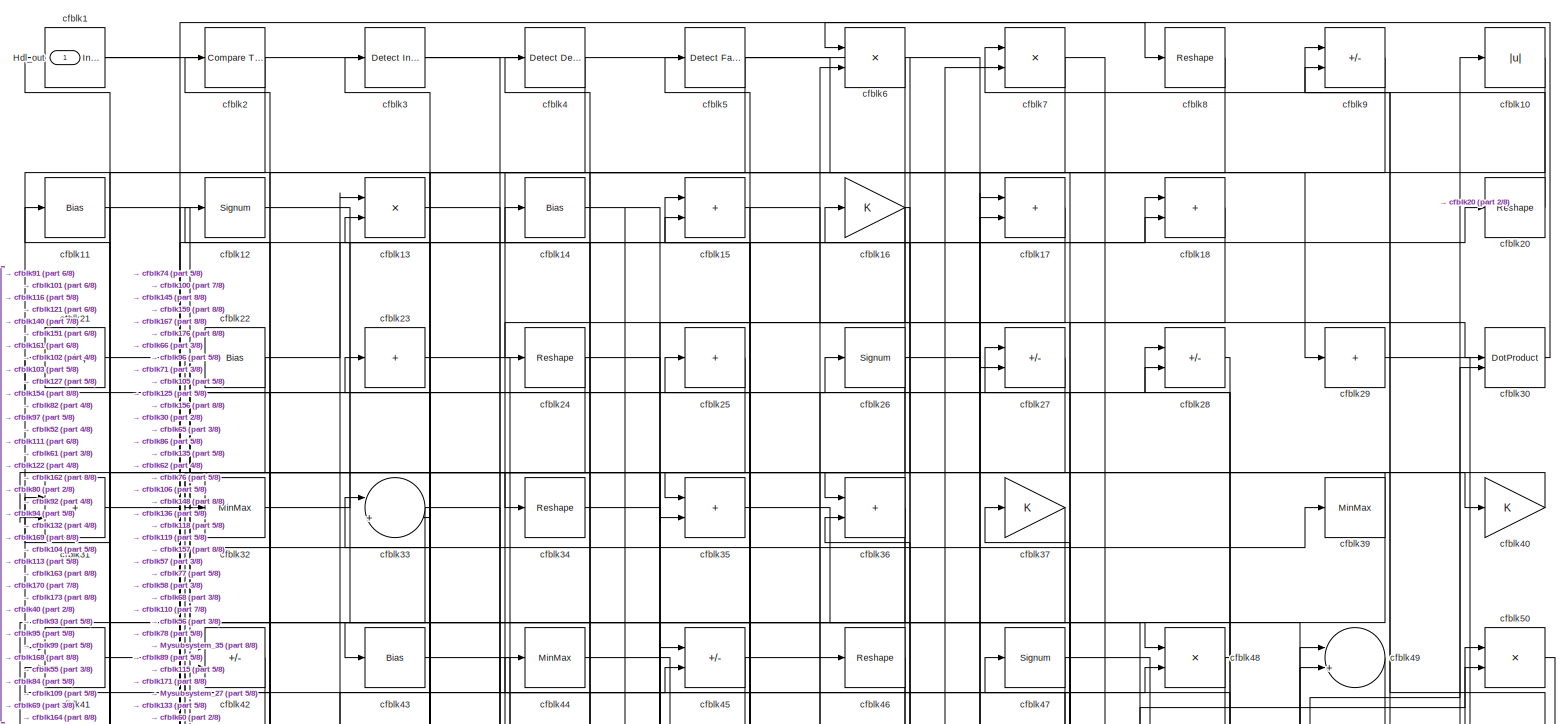
[diagram: root canvas - part 1/8, full width, top band]
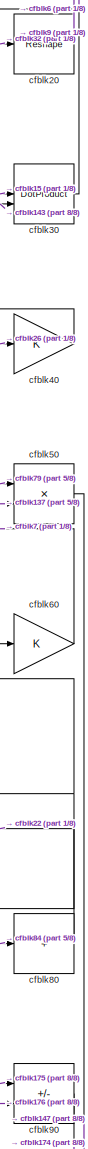
[diagram: root canvas - part 2/8, top right region]
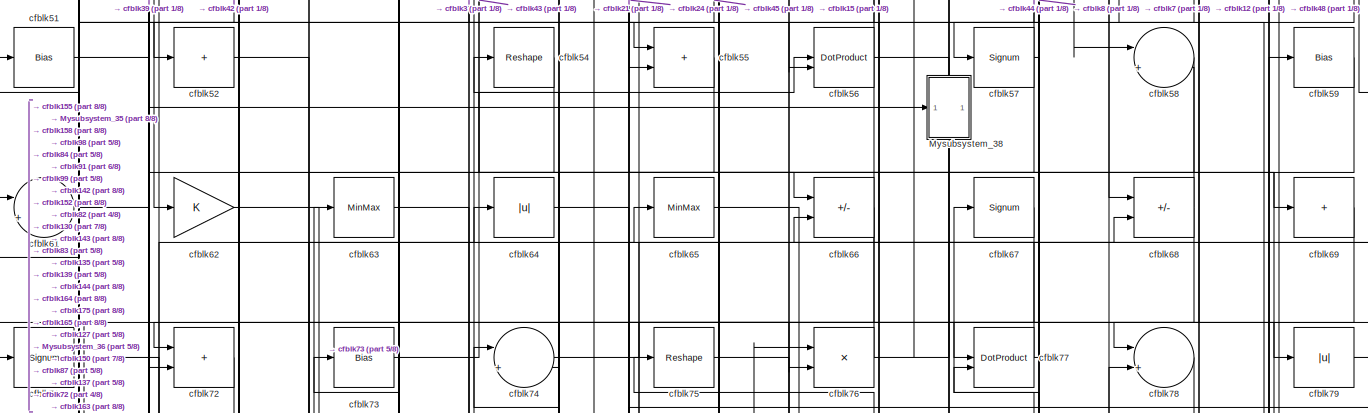
[diagram: root canvas - part 3/8, full width, middle band]
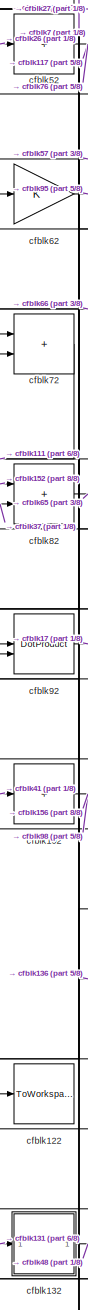
[diagram: root canvas - part 4/8, middle left region]
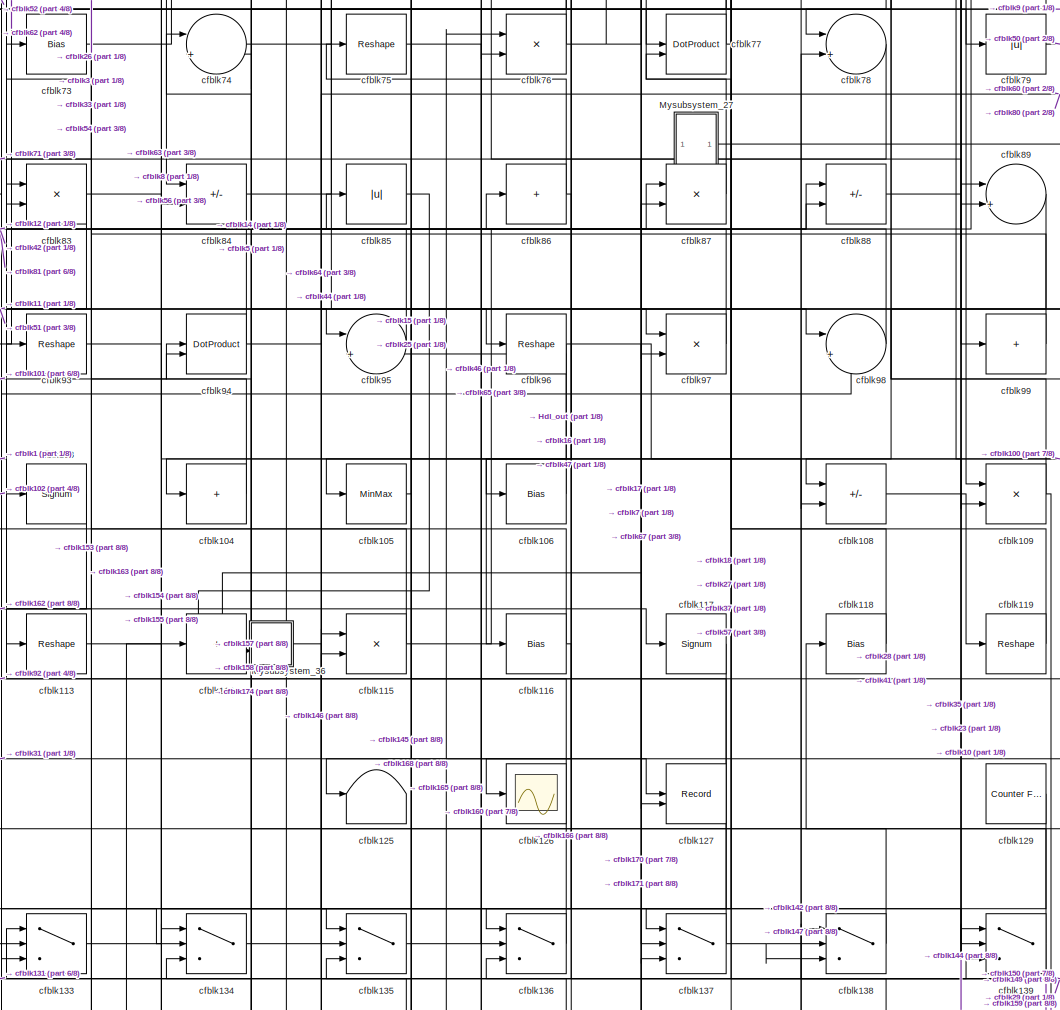
[diagram: root canvas - part 5/8, central region]
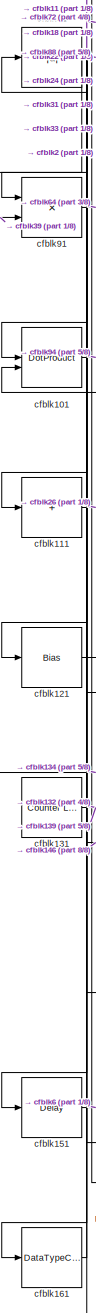
[diagram: root canvas - part 6/8, bottom left region]
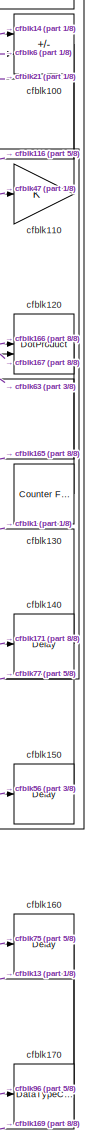
[diagram: root canvas - part 7/8, bottom right region]
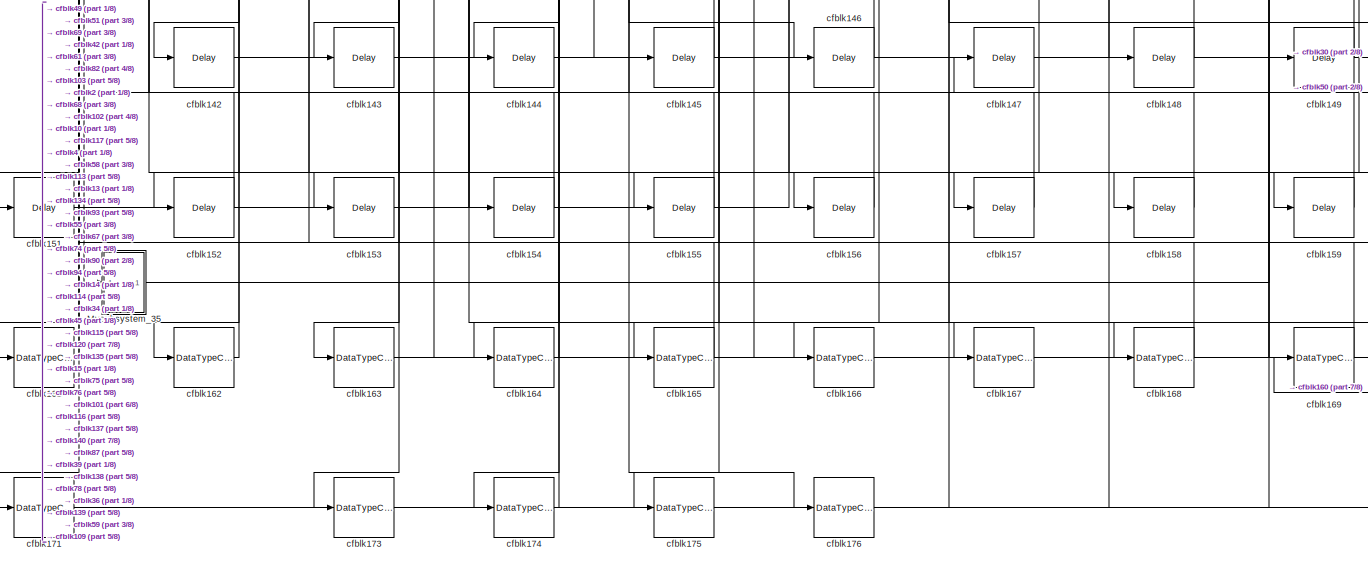
[diagram: root canvas - part 8/8, full width, bottom band]
MODEL slx_05c5dfade5c9
KIND model
CONFIG AbsTol = auto
CONFIG EnableMultiTasking = off
CONFIG FixedStep = auto
CONFIG MaxStep = auto
CONFIG MinStep = auto
CONFIG RelTol = 1e-3
CONFIG SampleTimeConstraint = Unconstrained
CONFIG SolverName = VariableStepAuto
CONFIG StartTime = 0.0
CONFIG StopTime = 10.0
BLOCK [Outport] Hdl_out
  OutDataTypeStr = uint8
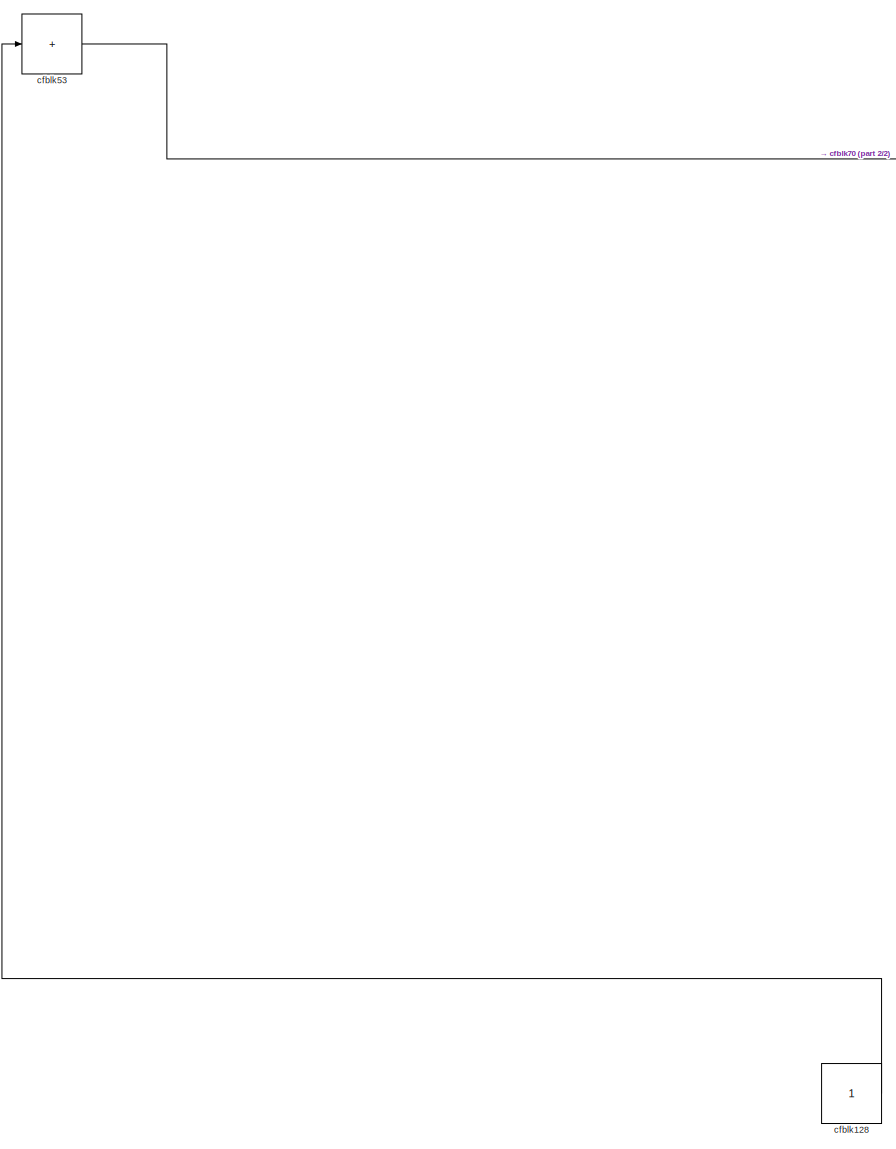
[diagram: Mysubsystem_27 - part 1/2, center side, full height]
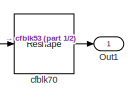
[diagram: Mysubsystem_27 - part 2/2, top right region]
BLOCK [SubSystem] Mysubsystem_27
  RTWFcnName = Mysubsystem_27
  RTWFcnNameOpts = User specified
  RTWFileNameOpts = Use function name
  RTWSystemCode = Reusable function
  TreatAsAtomicUnit = on
BLOCK [Outport] Mysubsystem_27/Out1
BLOCK [Constant] Mysubsystem_27/cfblk128
  SampleTime = -1
BLOCK [Sum] Mysubsystem_27/cfblk53
  IconShape = rectangular
  Inputs = +
BLOCK [Reshape] Mysubsystem_27/cfblk70
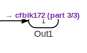
[diagram: Mysubsystem_35 - part 1/3, top right region]
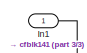
[diagram: Mysubsystem_35 - part 2/3, top right region]
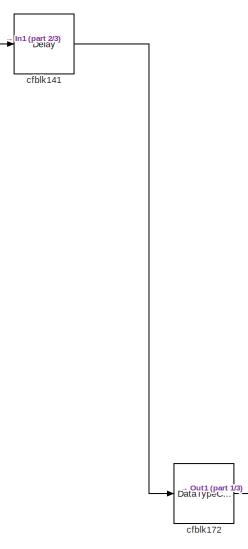
[diagram: Mysubsystem_35 - part 3/3, bottom left region]
BLOCK [SubSystem] Mysubsystem_35
  RTWFcnName = Mysubsystem_35
  RTWFcnNameOpts = User specified
  RTWFileNameOpts = Use function name
  RTWSystemCode = Reusable function
  TreatAsAtomicUnit = on
BLOCK [Inport] Mysubsystem_35/In1
BLOCK [Outport] Mysubsystem_35/Out1
BLOCK [Delay] Mysubsystem_35/cfblk141
  InputPortMap = u0
  SampleTime = 1
BLOCK [DataTypeConversion] Mysubsystem_35/cfblk172
  OutDataTypeStr = uint8
  RndMeth = Floor
  SaturateOnIntegerOverflow = off
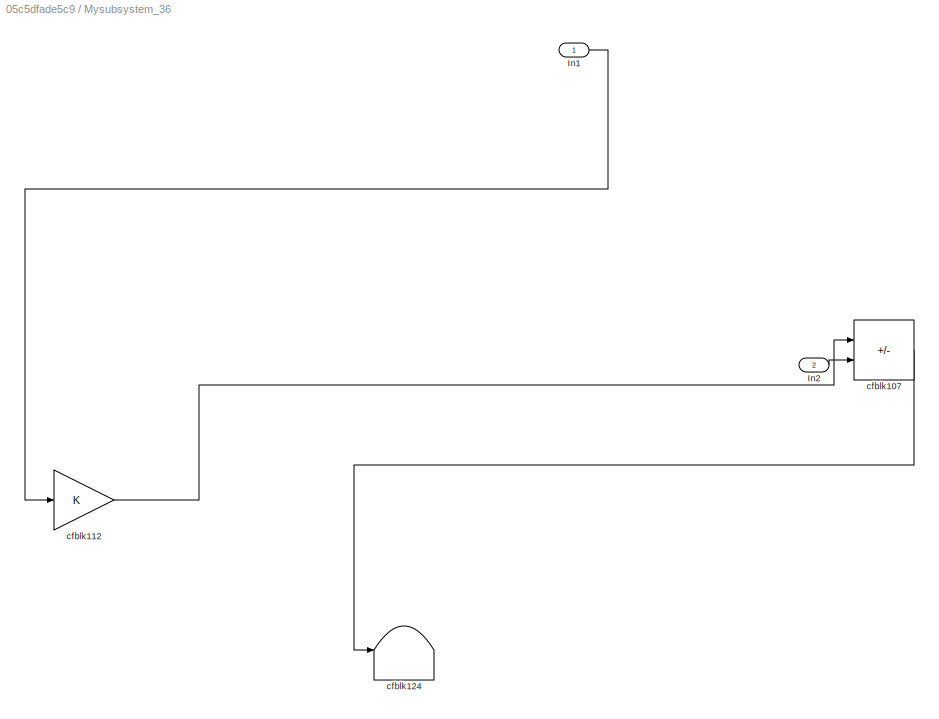
BLOCK [SubSystem] Mysubsystem_36
  RTWFcnName = Mysubsystem_36
  RTWFcnNameOpts = User specified
  RTWFileNameOpts = Use function name
  RTWSystemCode = Reusable function
  TreatAsAtomicUnit = on
BLOCK [Inport] Mysubsystem_36/In1
BLOCK [Inport] Mysubsystem_36/In2
  Port = 2
BLOCK [Sum] Mysubsystem_36/cfblk107
  IconShape = rectangular
  Inputs = +-
BLOCK [Gain] Mysubsystem_36/cfblk112
BLOCK [Terminator] Mysubsystem_36/cfblk124
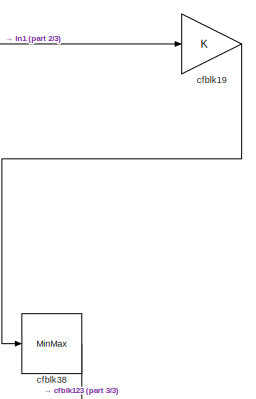
[diagram: Mysubsystem_38 - part 1/3, top right region]
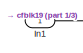
[diagram: Mysubsystem_38 - part 2/3, middle left region]
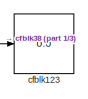
[diagram: Mysubsystem_38 - part 3/3, bottom left region]
BLOCK [SubSystem] Mysubsystem_38
  RTWFcnName = Mysubsystem_38
  RTWFcnNameOpts = User specified
  RTWFileNameOpts = Use function name
  RTWSystemCode = Reusable function
  TreatAsAtomicUnit = on
BLOCK [Inport] Mysubsystem_38/In1
BLOCK [Display] Mysubsystem_38/cfblk123
  Decimation = 1
BLOCK [Gain] Mysubsystem_38/cfblk19
BLOCK [MinMax] Mysubsystem_38/cfblk38
BLOCK [Reference] cfblk1  REF=simulink/Logic and Bit
Operations/Detect
Increase
  LibrarySourceBlock = hdlsllib/Logic and Bit\nOperations/Detect\nIncrease
  SourceBlock = simulink/Logic and Bit\nOperations/Detect\nIncrease
  SourceType = Detect Increase
BLOCK [Abs] cfblk10
  OutDataTypeStr = uint8
  SaturateOnIntegerOverflow = off
BLOCK [Sum] cfblk100
  IconShape = rectangular
  Inputs = +-
  OutDataTypeStr = uint8
BLOCK [DotProduct] cfblk101
  OutDataTypeStr = uint8
BLOCK [Sum] cfblk102
  IconShape = rectangular
  Inputs = +
  OutDataTypeStr = uint8
BLOCK [Signum] cfblk103
BLOCK [Sum] cfblk104
  IconShape = rectangular
  Inputs = +
  OutDataTypeStr = uint8
BLOCK [MinMax] cfblk105
  OutDataTypeStr = uint8
BLOCK [Bias] cfblk106
  Bias = 0.0
  SaturateOnIntegerOverflow = off
BLOCK [Sum] cfblk108
  IconShape = rectangular
  Inputs = +-
  OutDataTypeStr = uint8
BLOCK [Product] cfblk109
  Inputs = */
  OutDataTypeStr = uint8
  RndMeth = Zero
  SaturateOnIntegerOverflow = on
BLOCK [Bias] cfblk11
  Bias = 0.0
  SaturateOnIntegerOverflow = off
BLOCK [Gain] cfblk110
  OutDataTypeStr = uint8
BLOCK [Sum] cfblk111
  IconShape = rectangular
  Inputs = +
  OutDataTypeStr = uint8
BLOCK [Reshape] cfblk113
BLOCK [Sum] cfblk114
  IconShape = rectangular
  Inputs = +
  OutDataTypeStr = uint8
BLOCK [Product] cfblk115
  Inputs = */
  OutDataTypeStr = uint8
  RndMeth = Zero
  SaturateOnIntegerOverflow = on
BLOCK [Bias] cfblk116
  Bias = 0.0
  SaturateOnIntegerOverflow = off
BLOCK [Signum] cfblk117
BLOCK [Bias] cfblk118
  Bias = 0.0
  SaturateOnIntegerOverflow = off
BLOCK [Reshape] cfblk119
BLOCK [Signum] cfblk12
BLOCK [DotProduct] cfblk120
  OutDataTypeStr = uint8
BLOCK [Bias] cfblk121
  Bias = 0.0
  SaturateOnIntegerOverflow = off
BLOCK [ToWorkspace] cfblk122
  MaxDataPoints = inf
  SampleTime = -1
  SaveFormat = Timeseries
  VariableName = simout
BLOCK [Terminator] cfblk125
BLOCK [Scope] cfblk126
  Floating = off
  NumInputPorts = 1
  ScopeSpecificationString = Simulink.scopes.TimeScopeBlockCfg('CurrentConfiguration', extmgr.ConfigurationSet(extmgr.Configuration('Core','General UI',true),extmgr.Configuration('Core','Source UI',true),extmgr.Configuration('Sources','WiredSimulink',true,'DataLoggingVariableName','ScopeData2','DataLoggingSaveFormat','Array','DataLoggingLimitDataPoints',true,'DataLoggingDecimation','1'),extmgr.Configuration('Visuals','Time Do...<+868ch>
BLOCK [Record] cfblk127
  CompatibilityTag = XY
  FileSettingsInternal = {"entries":[{"content":{"excelSettings":{"content":{},"type":"Streamout.ExcelSettings"}},"type":"Streamout.FileSettingStorage","uuid":""}],"packageUris":["http:\/\/schema.mathworks.com\/mf0\/streamout_blocks\/R2020a"],"version":"1.0"}
  Layout = [1 1]
  SignalsInternal = {"entries":[{"content":{"signals":[{"content":{"blockPath":[],"dimensions":[1],"domain":"","lineColor":"#a2142f","plots":[1],"port":1,"signalID":49216,"signalName":"cfblk31"},"type":"RecordBlkView.Signal","uuid":""},{"content":{"blockPath":[],"dimensions":[1],"domain":"","lineColor":"#139fff","plots":[1],"port":2,"signalID":49219,"signalName":"cfblk65"},"type":"RecordBlkView.Signal","uuid":""}]},"...<+142ch>
  VisualizationBindings = {"xyplotplugin":{"info":[{"series":[{"bindingParametersList":[{"parameter":"X-Axis","signalID":49216,"signalName":"cfblk31"},{"parameter":"Y-Axis","signalID":49219,"signalName":"cfblk65"}],"seriesID":20958}],"subplotID":1}]}}
  st = -1
BLOCK [Reference] cfblk129  REF=hdlsllib/Sources/Counter
Free-Running
  SourceBlock = hdlsllib/Sources/Counter\nFree-Running
  SourceType = Counter Free-Running
BLOCK [Product] cfblk13
  Inputs = */
  OutDataTypeStr = uint8
  RndMeth = Zero
  SaturateOnIntegerOverflow = on
BLOCK [Reference] cfblk130  REF=hdlsllib/Sources/Counter
Free-Running
  SourceBlock = hdlsllib/Sources/Counter\nFree-Running
  SourceType = Counter Free-Running
BLOCK [Reference] cfblk131  REF=hdlsllib/Sources/Counter
Limited
  SourceBlock = hdlsllib/Sources/Counter\nLimited
  SourceType = Counter Limited
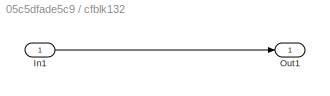
BLOCK [SubSystem] cfblk132
  LibrarySourceBlock = hdlsllib/Ports &\nSubsystems/Subsystem
BLOCK [Inport] cfblk132/In1
BLOCK [Outport] cfblk132/Out1
BLOCK [Switch] cfblk133
  InputSameDT = off
  OutDataTypeStr = uint8
  SaturateOnIntegerOverflow = off
BLOCK [Switch] cfblk134
  InputSameDT = off
  OutDataTypeStr = uint8
  SaturateOnIntegerOverflow = off
BLOCK [Switch] cfblk135
  InputSameDT = off
  OutDataTypeStr = uint8
  SaturateOnIntegerOverflow = off
BLOCK [Switch] cfblk136
  InputSameDT = off
  OutDataTypeStr = uint8
  SaturateOnIntegerOverflow = off
BLOCK [Switch] cfblk137
  InputSameDT = off
  OutDataTypeStr = uint8
  SaturateOnIntegerOverflow = off
BLOCK [Switch] cfblk138
  InputSameDT = off
  OutDataTypeStr = uint8
  SaturateOnIntegerOverflow = off
BLOCK [Switch] cfblk139
  InputSameDT = off
  OutDataTypeStr = uint8
  SaturateOnIntegerOverflow = off
BLOCK [Bias] cfblk14
  Bias = 0.0
  SaturateOnIntegerOverflow = off
BLOCK [Delay] cfblk140
  InputPortMap = u0
  SampleTime = 1
BLOCK [Delay] cfblk142
  InputPortMap = u0
  SampleTime = 1
BLOCK [Delay] cfblk143
  InputPortMap = u0
  SampleTime = 1
BLOCK [Delay] cfblk144
  InputPortMap = u0
  SampleTime = 1
BLOCK [Delay] cfblk145
  InputPortMap = u0
  SampleTime = 1
BLOCK [Delay] cfblk146
  InputPortMap = u0
  SampleTime = 1
BLOCK [Delay] cfblk147
  InputPortMap = u0
  SampleTime = 1
BLOCK [Delay] cfblk148
  InputPortMap = u0
  SampleTime = 1
BLOCK [Delay] cfblk149
  InputPortMap = u0
  SampleTime = 1
BLOCK [Sum] cfblk15
  IconShape = rectangular
  OutDataTypeStr = uint8
BLOCK [Delay] cfblk150
  InputPortMap = u0
  SampleTime = 1
BLOCK [Delay] cfblk151
  InputPortMap = u0
  SampleTime = 1
BLOCK [Delay] cfblk152
  InputPortMap = u0
  SampleTime = 1
BLOCK [Delay] cfblk153
  InputPortMap = u0
  SampleTime = 1
BLOCK [Delay] cfblk154
  InputPortMap = u0
  SampleTime = 1
BLOCK [Delay] cfblk155
  InputPortMap = u0
  SampleTime = 1
BLOCK [Delay] cfblk156
  InputPortMap = u0
  SampleTime = 1
BLOCK [Delay] cfblk157
  InputPortMap = u0
  SampleTime = 1
BLOCK [Delay] cfblk158
  InputPortMap = u0
  SampleTime = 1
BLOCK [Delay] cfblk159
  InputPortMap = u0
  SampleTime = 1
BLOCK [Gain] cfblk16
  OutDataTypeStr = uint8
BLOCK [Delay] cfblk160
  InputPortMap = u0
  SampleTime = 1
BLOCK [DataTypeConversion] cfblk161
  OutDataTypeStr = uint8
  RndMeth = Floor
  SaturateOnIntegerOverflow = off
BLOCK [DataTypeConversion] cfblk162
  OutDataTypeStr = uint8
  RndMeth = Floor
  SaturateOnIntegerOverflow = off
BLOCK [DataTypeConversion] cfblk163
  OutDataTypeStr = uint8
  RndMeth = Floor
  SaturateOnIntegerOverflow = off
BLOCK [DataTypeConversion] cfblk164
  OutDataTypeStr = uint8
  RndMeth = Floor
  SaturateOnIntegerOverflow = off
BLOCK [DataTypeConversion] cfblk165
  OutDataTypeStr = uint8
  RndMeth = Floor
  SaturateOnIntegerOverflow = off
BLOCK [DataTypeConversion] cfblk166
  OutDataTypeStr = uint8
  RndMeth = Floor
  SaturateOnIntegerOverflow = off
BLOCK [DataTypeConversion] cfblk167
  OutDataTypeStr = uint8
  RndMeth = Floor
  SaturateOnIntegerOverflow = off
BLOCK [DataTypeConversion] cfblk168
  OutDataTypeStr = uint8
  RndMeth = Floor
  SaturateOnIntegerOverflow = off
BLOCK [DataTypeConversion] cfblk169
  OutDataTypeStr = uint8
  RndMeth = Floor
  SaturateOnIntegerOverflow = off
BLOCK [Sum] cfblk17
  IconShape = rectangular
  OutDataTypeStr = uint8
BLOCK [DataTypeConversion] cfblk170
  OutDataTypeStr = uint8
  RndMeth = Floor
  SaturateOnIntegerOverflow = off
BLOCK [DataTypeConversion] cfblk171
  OutDataTypeStr = uint8
  RndMeth = Floor
  SaturateOnIntegerOverflow = off
BLOCK [DataTypeConversion] cfblk173
  OutDataTypeStr = uint8
  RndMeth = Floor
  SaturateOnIntegerOverflow = off
BLOCK [DataTypeConversion] cfblk174
  OutDataTypeStr = uint8
  RndMeth = Floor
  SaturateOnIntegerOverflow = off
BLOCK [DataTypeConversion] cfblk175
  OutDataTypeStr = uint8
  RndMeth = Floor
  SaturateOnIntegerOverflow = off
BLOCK [DataTypeConversion] cfblk176
  OutDataTypeStr = uint8
  RndMeth = Floor
  SaturateOnIntegerOverflow = off
BLOCK [Sum] cfblk18
  IconShape = rectangular
  OutDataTypeStr = uint8
BLOCK [Reference] cfblk2  REF=hdlsllib/Logic and Bit
Operations/Compare
To Constant
  SourceBlock = hdlsllib/Logic and Bit\nOperations/Compare\nTo Constant
  SourceType = Compare To Constant
BLOCK [Reshape] cfblk20
BLOCK [Reshape] cfblk21
BLOCK [Bias] cfblk22
  Bias = 0.0
  SaturateOnIntegerOverflow = off
BLOCK [Sum] cfblk23
  IconShape = rectangular
  Inputs = +
  OutDataTypeStr = uint8
BLOCK [Reshape] cfblk24
BLOCK [Sum] cfblk25
  IconShape = rectangular
  Inputs = +
  OutDataTypeStr = uint8
BLOCK [Signum] cfblk26
BLOCK [Sum] cfblk27
  IconShape = rectangular
  Inputs = +-
  OutDataTypeStr = uint8
BLOCK [Sum] cfblk28
  IconShape = rectangular
  Inputs = +-
  OutDataTypeStr = uint8
BLOCK [Sum] cfblk29
  IconShape = rectangular
  Inputs = +
  OutDataTypeStr = uint8
BLOCK [Reference] cfblk3  REF=simulink/Logic and Bit
Operations/Detect
Increase
  LibrarySourceBlock = hdlsllib/Logic and Bit\nOperations/Detect\nIncrease
  SourceBlock = simulink/Logic and Bit\nOperations/Detect\nIncrease
  SourceType = Detect Increase
BLOCK [DotProduct] cfblk30
  OutDataTypeStr = uint8
BLOCK [Sum] cfblk31
  IconShape = rectangular
  OutDataTypeStr = uint8
BLOCK [MinMax] cfblk32
  OutDataTypeStr = uint8
BLOCK [Sum] cfblk33
  Inputs = |++
  OutDataTypeStr = uint8
BLOCK [Reshape] cfblk34
BLOCK [Sum] cfblk35
  IconShape = rectangular
  OutDataTypeStr = uint8
BLOCK [Sum] cfblk36
  IconShape = rectangular
  OutDataTypeStr = uint8
BLOCK [Gain] cfblk37
  OutDataTypeStr = uint8
BLOCK [MinMax] cfblk39
  OutDataTypeStr = uint8
BLOCK [Reference] cfblk4  REF=simulink/Logic and Bit
Operations/Detect
Decrease
  LibrarySourceBlock = hdlsllib/Logic and Bit\nOperations/Detect\nDecrease
  SourceBlock = simulink/Logic and Bit\nOperations/Detect\nDecrease
  SourceType = Detect Decrease
BLOCK [Gain] cfblk40
  OutDataTypeStr = uint8
BLOCK [Product] cfblk41
  Inputs = */
  OutDataTypeStr = uint8
  RndMeth = Zero
  SaturateOnIntegerOverflow = on
BLOCK [Sum] cfblk42
  IconShape = rectangular
  Inputs = +-
  OutDataTypeStr = uint8
BLOCK [Bias] cfblk43
  Bias = 0.0
  SaturateOnIntegerOverflow = off
BLOCK [MinMax] cfblk44
  OutDataTypeStr = uint8
BLOCK [Sum] cfblk45
  IconShape = rectangular
  Inputs = +-
  OutDataTypeStr = uint8
BLOCK [Reshape] cfblk46
BLOCK [Signum] cfblk47
BLOCK [Product] cfblk48
  Inputs = */
  OutDataTypeStr = uint8
  RndMeth = Zero
  SaturateOnIntegerOverflow = on
BLOCK [Sum] cfblk49
  Inputs = |++
  OutDataTypeStr = uint8
BLOCK [Reference] cfblk5  REF=hdlsllib/Logic and Bit
Operations/Detect Fall
Negative
  SourceBlock = hdlsllib/Logic and Bit\nOperations/Detect Fall\nNegative
  SourceType = Detect Fall Negative
BLOCK [Product] cfblk50
  Inputs = */
  OutDataTypeStr = uint8
  RndMeth = Zero
  SaturateOnIntegerOverflow = on
BLOCK [Bias] cfblk51
  Bias = 0.0
  SaturateOnIntegerOverflow = off
BLOCK [Sum] cfblk52
  IconShape = rectangular
  Inputs = +
  OutDataTypeStr = uint8
BLOCK [Reshape] cfblk54
BLOCK [Sum] cfblk55
  IconShape = rectangular
  OutDataTypeStr = uint8
BLOCK [DotProduct] cfblk56
  OutDataTypeStr = uint8
BLOCK [Signum] cfblk57
BLOCK [Sum] cfblk58
  Inputs = |++
  OutDataTypeStr = uint8
BLOCK [Bias] cfblk59
  Bias = 0.0
  SaturateOnIntegerOverflow = off
BLOCK [Product] cfblk6
  Inputs = */
  OutDataTypeStr = uint8
  RndMeth = Zero
  SaturateOnIntegerOverflow = on
BLOCK [Gain] cfblk60
  OutDataTypeStr = uint8
BLOCK [Sum] cfblk61
  Inputs = |++
  OutDataTypeStr = uint8
BLOCK [Gain] cfblk62
  OutDataTypeStr = uint8
BLOCK [MinMax] cfblk63
  OutDataTypeStr = uint8
BLOCK [Abs] cfblk64
  OutDataTypeStr = uint8
  SaturateOnIntegerOverflow = off
BLOCK [MinMax] cfblk65
  OutDataTypeStr = uint8
BLOCK [Sum] cfblk66
  IconShape = rectangular
  Inputs = +-
  OutDataTypeStr = uint8
BLOCK [Signum] cfblk67
BLOCK [Sum] cfblk68
  IconShape = rectangular
  Inputs = +-
  OutDataTypeStr = uint8
BLOCK [Sum] cfblk69
  IconShape = rectangular
  Inputs = +
  OutDataTypeStr = uint8
BLOCK [Product] cfblk7
  Inputs = */
  OutDataTypeStr = uint8
  RndMeth = Zero
  SaturateOnIntegerOverflow = on
BLOCK [Signum] cfblk71
BLOCK [Sum] cfblk72
  IconShape = rectangular
  OutDataTypeStr = uint8
BLOCK [Bias] cfblk73
  Bias = 0.0
  SaturateOnIntegerOverflow = off
BLOCK [Sum] cfblk74
  Inputs = |++
  OutDataTypeStr = uint8
BLOCK [Reshape] cfblk75
BLOCK [Product] cfblk76
  Inputs = */
  OutDataTypeStr = uint8
  RndMeth = Zero
  SaturateOnIntegerOverflow = on
BLOCK [DotProduct] cfblk77
  OutDataTypeStr = uint8
BLOCK [Sum] cfblk78
  Inputs = |++
  OutDataTypeStr = uint8
BLOCK [Abs] cfblk79
  OutDataTypeStr = uint8
  SaturateOnIntegerOverflow = off
BLOCK [Reshape] cfblk8
BLOCK [Sum] cfblk80
  IconShape = rectangular
  Inputs = +
  OutDataTypeStr = uint8
BLOCK [Abs] cfblk81
  OutDataTypeStr = uint8
  SaturateOnIntegerOverflow = off
BLOCK [Sum] cfblk82
  IconShape = rectangular
  OutDataTypeStr = uint8
BLOCK [Product] cfblk83
  Inputs = */
  OutDataTypeStr = uint8
  RndMeth = Zero
  SaturateOnIntegerOverflow = on
BLOCK [Sum] cfblk84
  IconShape = rectangular
  Inputs = +-
  OutDataTypeStr = uint8
BLOCK [Abs] cfblk85
  OutDataTypeStr = uint8
  SaturateOnIntegerOverflow = off
BLOCK [Sum] cfblk86
  IconShape = rectangular
  Inputs = +
  OutDataTypeStr = uint8
BLOCK [Product] cfblk87
  Inputs = */
  OutDataTypeStr = uint8
  RndMeth = Zero
  SaturateOnIntegerOverflow = on
BLOCK [Sum] cfblk88
  IconShape = rectangular
  Inputs = +-
  OutDataTypeStr = uint8
BLOCK [Sum] cfblk89
  Inputs = |++
  OutDataTypeStr = uint8
BLOCK [Sum] cfblk9
  IconShape = rectangular
  Inputs = +-
  OutDataTypeStr = uint8
BLOCK [Sum] cfblk90
  IconShape = rectangular
  Inputs = +-
  OutDataTypeStr = uint8
BLOCK [Product] cfblk91
  Inputs = */
  OutDataTypeStr = uint8
  RndMeth = Zero
  SaturateOnIntegerOverflow = on
BLOCK [DotProduct] cfblk92
  OutDataTypeStr = uint8
BLOCK [Reshape] cfblk93
BLOCK [DotProduct] cfblk94
  OutDataTypeStr = uint8
BLOCK [Sum] cfblk95
  Inputs = |++
  OutDataTypeStr = uint8
BLOCK [Reshape] cfblk96
BLOCK [Product] cfblk97
  Inputs = */
  OutDataTypeStr = uint8
  RndMeth = Zero
  SaturateOnIntegerOverflow = on
BLOCK [Sum] cfblk98
  Inputs = |++
  OutDataTypeStr = uint8
BLOCK [Sum] cfblk99
  IconShape = rectangular
  Inputs = +
  OutDataTypeStr = uint8
LINE Mysubsystem_27/cfblk128:1 -> Mysubsystem_27/cfblk53:1
LINE Mysubsystem_27/cfblk53:1 -> Mysubsystem_27/cfblk70:1
LINE Mysubsystem_27/cfblk70:1 -> Mysubsystem_27/Out1:1
NET Mysubsystem_27:1 -> cfblk135:2, cfblk9:2
LINE Mysubsystem_35/In1:1 -> Mysubsystem_35/cfblk141:1
LINE Mysubsystem_35/cfblk141:1 -> Mysubsystem_35/cfblk172:1
LINE Mysubsystem_35/cfblk172:1 -> Mysubsystem_35/Out1:1
LINE Mysubsystem_35:1 -> cfblk49:1
LINE Mysubsystem_36/In1:1 -> Mysubsystem_36/cfblk112:1
LINE Mysubsystem_36/In2:1 -> Mysubsystem_36/cfblk107:2
LINE Mysubsystem_36/cfblk107:1 -> Mysubsystem_36/cfblk124:1
LINE Mysubsystem_36/cfblk112:1 -> Mysubsystem_36/cfblk107:1
LINE Mysubsystem_38/In1:1 -> Mysubsystem_38/cfblk19:1
LINE Mysubsystem_38/cfblk19:1 -> Mysubsystem_38/cfblk38:1
LINE Mysubsystem_38/cfblk38:1 -> Mysubsystem_38/cfblk123:1
LINE cfblk100:1 -> cfblk116:1
LINE cfblk101:1 -> cfblk94:1
NET cfblk102:1 -> cfblk156:1, cfblk98:2
LINE cfblk103:1 -> cfblk162:1
LINE cfblk104:1 -> cfblk3:1
LINE cfblk105:1 -> cfblk25:1
LINE cfblk106:1 -> cfblk95:2
LINE cfblk108:1 -> cfblk119:1
NET cfblk109:1 -> cfblk159:1, cfblk41:2
LINE cfblk10:1 -> cfblk173:1
LINE cfblk110:1 -> cfblk21:1
LINE cfblk111:1 -> cfblk26:1
LINE cfblk113:1 -> cfblk155:1
LINE cfblk114:1 -> cfblk146:1
NET cfblk115:1 -> cfblk10:1, cfblk73:1
NET cfblk116:1 -> cfblk11:1, cfblk166:1
LINE cfblk117:1 -> cfblk153:1
LINE cfblk118:1 -> cfblk37:1
LINE cfblk119:1 -> cfblk27:1
NET cfblk11:1 -> cfblk151:1, cfblk48:1, cfblk97:1
LINE cfblk120:1 -> cfblk165:1
NET cfblk121:1 -> cfblk18:1, cfblk31:1
NET cfblk129:1 -> cfblk133:3, cfblk137:2
LINE cfblk12:1 -> cfblk68:1
LINE cfblk130:1 -> cfblk63:1
NET cfblk131:1 -> cfblk132:1, cfblk139:3
LINE cfblk132/In1:1 -> cfblk132/Out1:1
LINE cfblk132:1 -> cfblk48:2
LINE cfblk133:1 -> cfblk87:1
LINE cfblk134:1 -> cfblk115:2
LINE cfblk135:1 -> cfblk46:1
NET cfblk136:1 -> cfblk14:1, cfblk92:2
NET cfblk137:1 -> cfblk138:3, cfblk50:2, cfblk85:1
LINE cfblk138:1 -> cfblk118:1
NET cfblk139:1 -> cfblk136:3, cfblk54:1
LINE cfblk13:1 -> cfblk168:1
LINE cfblk140:1 -> cfblk1:1
LINE cfblk142:1 -> cfblk138:1
LINE cfblk143:1 -> cfblk30:2
LINE cfblk144:1 -> cfblk139:1
LINE cfblk145:1 -> cfblk115:1
LINE cfblk146:1 -> cfblk101:2
LINE cfblk147:1 -> cfblk78:2
LINE cfblk148:1 -> cfblk36:2
LINE cfblk149:1 -> cfblk138:2
NET cfblk14:1 -> cfblk100:1, cfblk145:1
LINE cfblk150:1 -> cfblk77:2
LINE cfblk151:1 -> cfblk6:2
LINE cfblk152:1 -> cfblk82:1
LINE cfblk153:1 -> cfblk134:1
LINE cfblk154:1 -> cfblk42:1
LINE cfblk155:1 -> cfblk61:1
LINE cfblk156:1 -> cfblk15:2
LINE cfblk157:1 -> cfblk134:3
LINE cfblk158:1 -> cfblk94:2
LINE cfblk159:1 -> cfblk45:1
NET cfblk15:1 -> cfblk125:1, cfblk30:1
LINE cfblk160:1 -> cfblk169:1
LINE cfblk161:1 -> cfblk81:1
LINE cfblk162:1 -> cfblk2:1
NET cfblk163:1 -> cfblk114:1, cfblk59:1
LINE cfblk164:1 -> cfblk4:1
NET cfblk165:1 -> cfblk149:1, cfblk51:1, cfblk76:1
LINE cfblk166:1 -> cfblk120:1
LINE cfblk167:1 -> cfblk120:2
NET cfblk168:1 -> cfblk135:3, cfblk75:1
LINE cfblk169:1 -> cfblk13:1
NET cfblk16:1 -> cfblk106:1, cfblk24:1
LINE cfblk170:1 -> cfblk13:2
NET cfblk171:1 -> cfblk137:3, cfblk140:1, cfblk87:2
LINE cfblk173:1 -> cfblk49:2
NET cfblk174:1 -> cfblk148:1, cfblk74:1
LINE cfblk175:1 -> cfblk90:1
LINE cfblk176:1 -> cfblk90:2
LINE cfblk17:1 -> cfblk35:2
LINE cfblk18:1 -> cfblk77:1
NET cfblk1:1 -> cfblk103:1, cfblk8:1
LINE cfblk20:1 -> cfblk9:1
LINE cfblk21:1 -> cfblk55:2
NET cfblk22:1 -> cfblk121:1, cfblk18:2
LINE cfblk23:1 -> cfblk109:1
NET cfblk24:1 -> cfblk101:1, cfblk66:1
LINE cfblk25:1 -> cfblk31:2
NET cfblk26:1 -> cfblk113:1, cfblk40:1, cfblk52:1, cfblk93:1
LINE cfblk27:1 -> cfblk122:1
LINE cfblk28:1 -> cfblk78:1
LINE cfblk29:1 -> cfblk133:1
LINE cfblk2:1 -> cfblk161:1
LINE cfblk30:1 -> cfblk6:1
LINE cfblk31:1 -> cfblk127:1
LINE cfblk32:1 -> cfblk20:1
NET cfblk33:1 -> cfblk136:2, cfblk91:1
NET cfblk34:1 -> cfblk167:1, cfblk176:1
LINE cfblk35:1 -> cfblk89:1
LINE cfblk36:1 -> cfblk43:1
LINE cfblk37:1 -> cfblk82:2
NET cfblk39:1 -> cfblk157:1, cfblk35:1, cfblk91:2
LINE cfblk3:1 -> cfblk55:1
LINE cfblk40:1 -> cfblk32:1
LINE cfblk41:1 -> cfblk102:1
LINE cfblk42:1 -> cfblk61:2
NET cfblk43:1 -> cfblk45:2, cfblk69:1
LINE cfblk44:1 -> cfblk96:1
NET cfblk45:1 -> cfblk28:2, cfblk71:1
LINE cfblk46:1 -> cfblk62:1
NET cfblk47:1 -> cfblk110:1, cfblk136:1
NET cfblk48:1 -> cfblk28:1, cfblk56:2
LINE cfblk49:1 -> cfblk171:1
LINE cfblk4:1 -> cfblk163:1
LINE cfblk50:1 -> cfblk147:1
LINE cfblk51:1 -> cfblk98:1
NET cfblk52:1 -> cfblk117:1, cfblk76:2
LINE cfblk54:1 -> cfblk83:1
LINE cfblk55:1 -> cfblk164:1
NET cfblk56:1 -> Mysubsystem_36:2, cfblk150:1
NET cfblk57:1 -> cfblk137:1, cfblk44:1, cfblk72:2
NET cfblk58:1 -> cfblk142:1, cfblk143:1
LINE cfblk59:1 -> cfblk175:1
NET cfblk5:1 -> cfblk29:1, cfblk34:1, cfblk74:2
LINE cfblk60:1 -> cfblk7:1
NET cfblk61:1 -> cfblk158:1, cfblk39:1
LINE cfblk62:1 -> cfblk95:1
LINE cfblk63:1 -> cfblk135:1
NET cfblk64:1 -> cfblk139:2, cfblk68:2
NET cfblk65:1 -> cfblk127:2, cfblk15:1
LINE cfblk66:1 -> cfblk72:1
LINE cfblk67:1 -> cfblk144:1
NET cfblk68:1 -> cfblk152:1, cfblk58:2, cfblk66:2
LINE cfblk69:1 -> Mysubsystem_35:1
NET cfblk6:1 -> cfblk100:2, cfblk36:1
NET cfblk71:1 -> Mysubsystem_38:1, cfblk84:2, cfblk99:1
LINE cfblk72:1 -> cfblk111:1
LINE cfblk73:1 -> cfblk56:1
LINE cfblk74:1 -> cfblk79:1
LINE cfblk75:1 -> cfblk160:1
NET cfblk76:1 -> Hdl_out:1, cfblk17:1, cfblk7:2
NET cfblk77:1 -> cfblk16:1, cfblk47:1
NET cfblk78:1 -> cfblk104:1, cfblk97:2
LINE cfblk79:1 -> cfblk50:1
NET cfblk7:1 -> cfblk58:1, cfblk92:1
LINE cfblk80:1 -> cfblk22:1
NET cfblk81:1 -> cfblk134:2, cfblk88:2
LINE cfblk82:1 -> cfblk65:1
NET cfblk83:1 -> cfblk108:2, cfblk133:2
NET cfblk84:1 -> cfblk60:1, cfblk80:1
LINE cfblk85:1 -> Mysubsystem_36:1
NET cfblk86:1 -> cfblk126:1, cfblk5:1
LINE cfblk87:1 -> cfblk67:1
LINE cfblk88:1 -> cfblk89:2
LINE cfblk89:1 -> cfblk108:1
NET cfblk8:1 -> cfblk27:2, cfblk57:1, cfblk84:1
LINE cfblk90:1 -> cfblk174:1
LINE cfblk91:1 -> cfblk64:1
LINE cfblk92:1 -> cfblk17:2
LINE cfblk93:1 -> cfblk154:1
NET cfblk94:1 -> cfblk12:1, cfblk42:2, cfblk88:1
NET cfblk95:1 -> cfblk33:1, cfblk33:2
NET cfblk96:1 -> cfblk105:1, cfblk109:2, cfblk170:1
LINE cfblk97:1 -> cfblk86:1
LINE cfblk98:1 -> cfblk83:2
LINE cfblk99:1 -> cfblk23:1
LINE cfblk9:1 -> cfblk41:1
note: NET lines group one-source signal fan-out (src -> all destinations, sorted); 1:1 wires keep LINE
